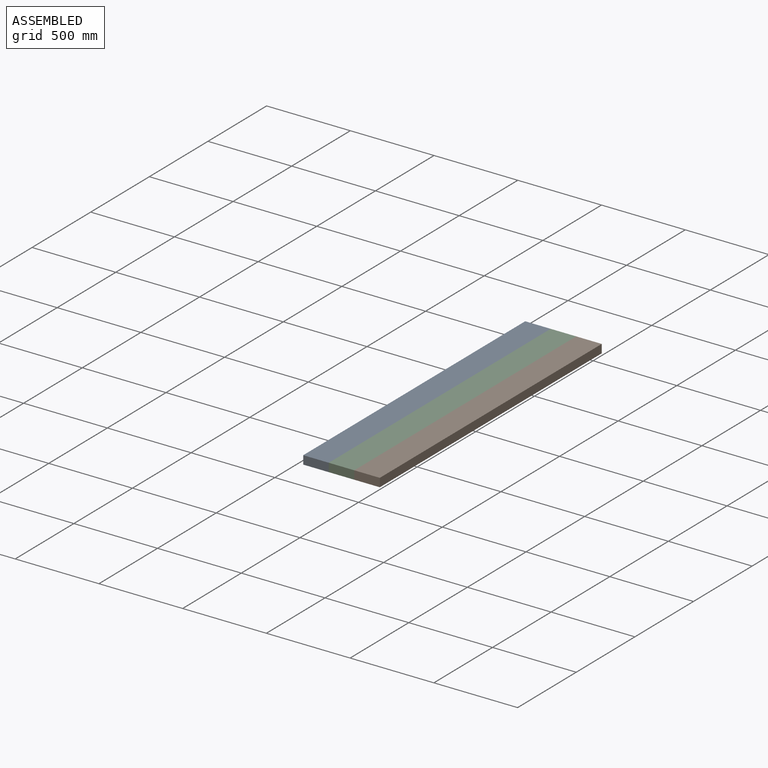
[diagram: assembled view]
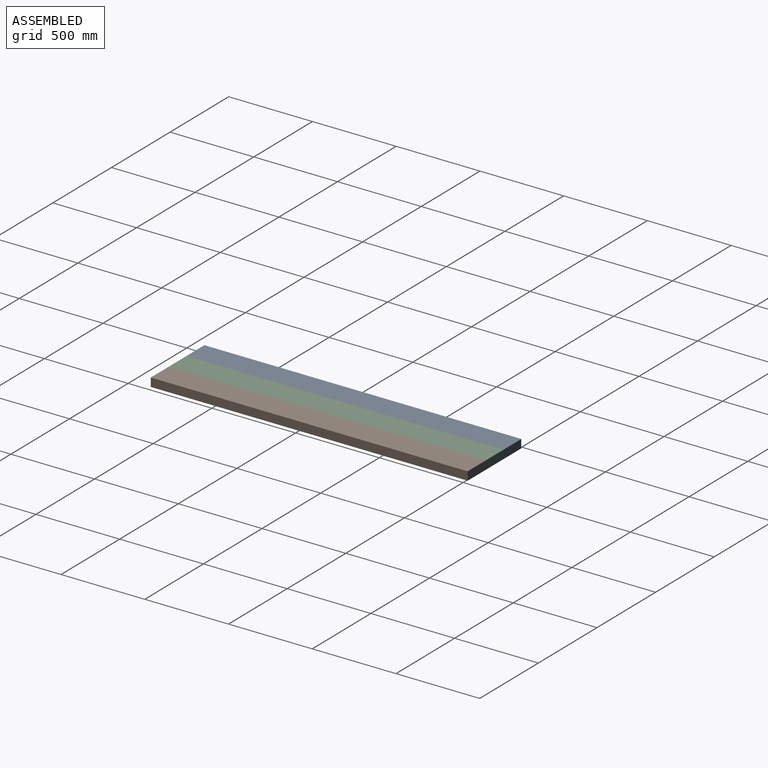
[diagram: assembled view, second angle]
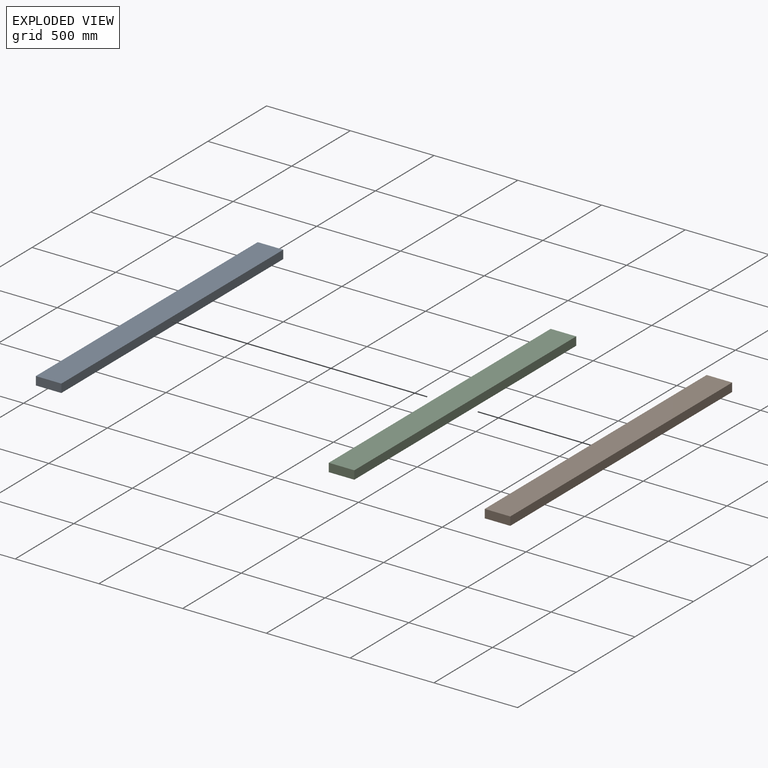
[diagram: exploded view]
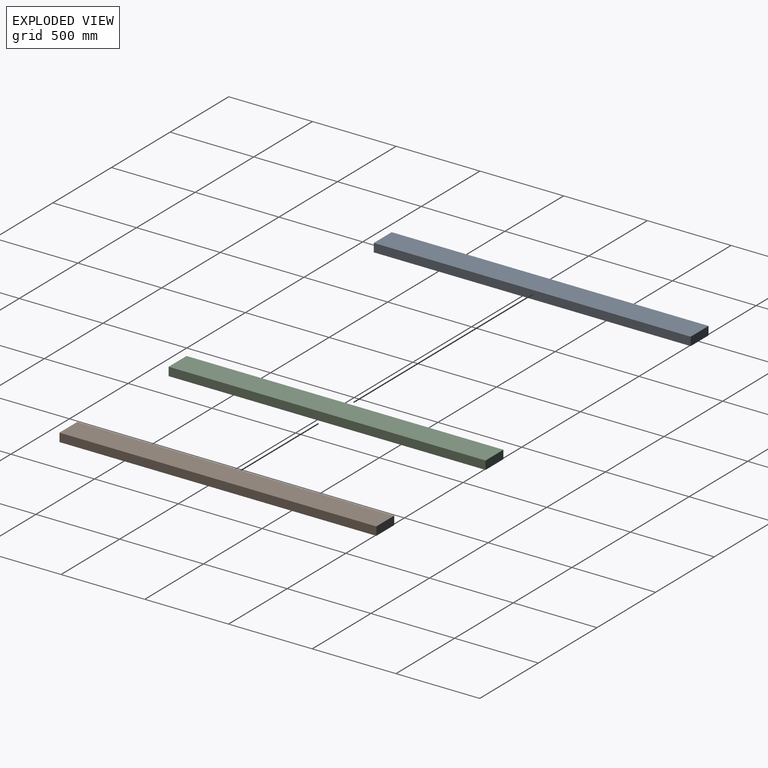
[diagram: exploded view, second angle]
ASSEMBLY  parts=3 mates=2
PART A: 6 faces, bbox 152.4x1892.3x50.8 mm
  f0: plane 1892.3x152.4mm, normal (0,0,1), area 288386.5mm2, adj f1,f3,f4,f5
  f1: plane 1892.3x50.8mm, normal (-1,0,0), area 96128.8mm2, adj f0,f2,f4,f5
  f2: plane 1892.3x152.4mm, normal (0,0,-1), area 288386.5mm2, adj f1,f3,f4,f5
  f3: plane 1892.3x50.8mm, normal (1,0,0), area 96128.8mm2, adj f0,f2,f4,f5
  f4: plane 152.4x50.8mm, normal (0,1,0), area 7741.9mm2, adj f0,f1,f2,f3
  f5: plane 152.4x50.8mm, normal (0,-1,0), area 7741.9mm2, adj f0,f1,f2,f3
PART B: same geometry as A
PART C: same geometry as A
PLACE A t=(64.35,150.74,-93.59)mm
PLACE B t=(369.15,150.74,-93.59)mm
PLACE C t=(216.75,150.74,-93.59)mm
MATE fastened A.f3 <-> C.f1  axis (1,0,0) through (216.75,1096.89,-68.19)mm
MATE fastened A.f3 <-> C.f1  axis (1,0,0) through (216.75,1096.89,-68.19)mm
